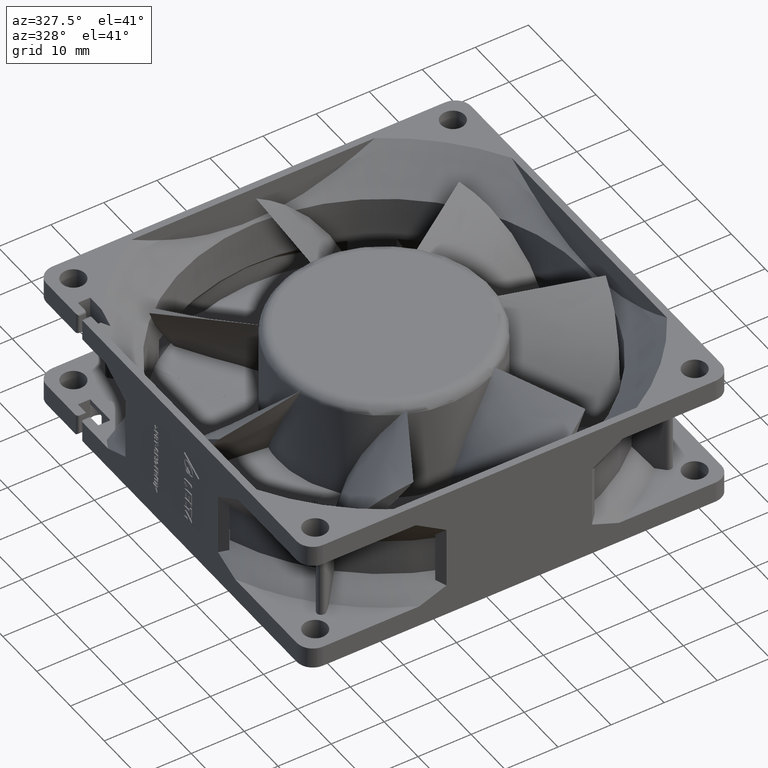
[diagram: clean part render]
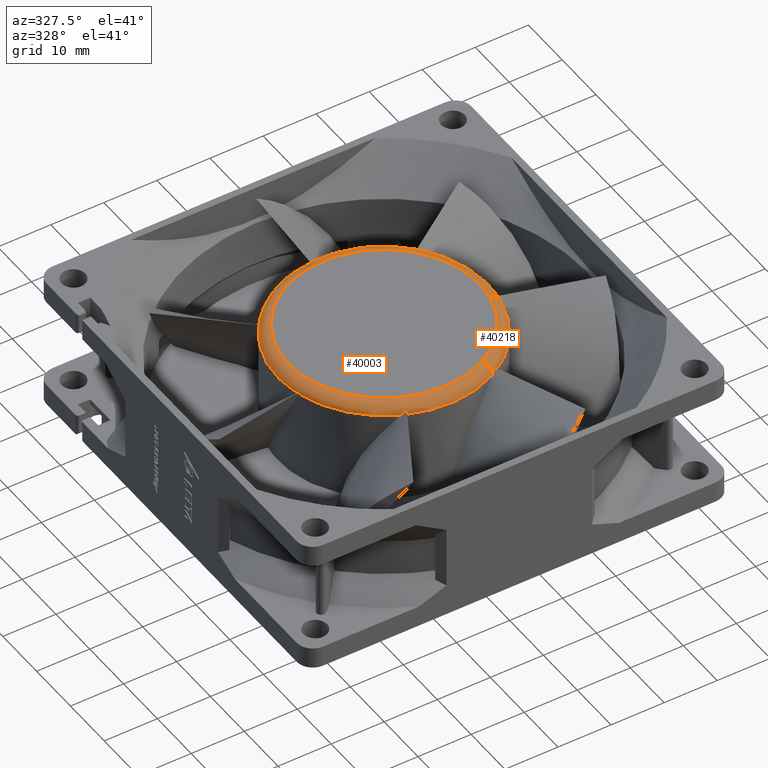
[diagram: same view with one multi-face feature highlighted, each face labeled with its STEP entity id]
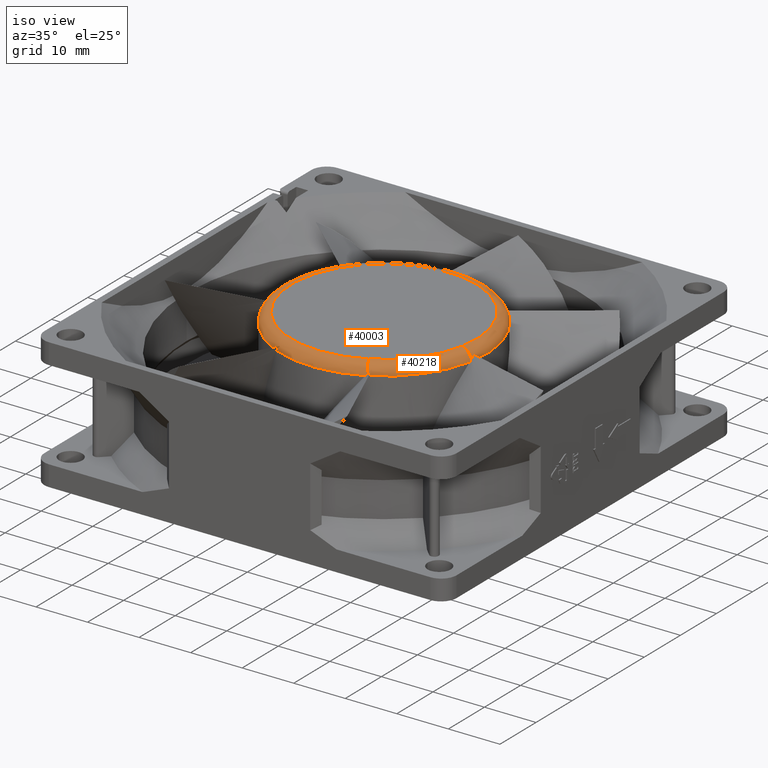
[diagram: same view with one multi-face feature highlighted, each face labeled with its STEP entity id]
A machine part, auxiliary view. The highlighted faces form ONE feature: a constant-radius fillet chain: 2 tangent blend faces with common blend radius 2 mm. The faces share edges in the B-rep.
A second angle (iso view) of the same feature is appended — it is thin or edge-on in the first view.
Their STEP definitions:
[1] entity #40218 (Torus):
#39273=CARTESIAN_POINT('',(0.E0,2.2E1,0.E0));
#39274=DIRECTION('',(0.E0,1.E0,0.E0));
#39275=DIRECTION('',(8.830438553810E-1,0.E0,-4.692904745185E-1));
#39276=AXIS2_PLACEMENT_3D('',#39273,#39274,#39275);
#39433=CARTESIAN_POINT('',(3.915445330627E0,2.225551429442E1,
-1.959627502642E1));
#39439=CARTESIAN_POINT('',(3.526790769618E0,2.2E1,-1.765111177426E1));
#39440=DIRECTION('',(-9.806173207921E-1,0.E0,-1.959328205343E-1));
#39441=DIRECTION('',(-4.051936697280E-8,1.E0,2.027939629556E-7));
#39442=AXIS2_PLACEMENT_3D('',#39439,#39440,#39441);
#39592=CARTESIAN_POINT('',(1.717412420517E1,2.3E1,-9.716135386967E0));
#39593=CARTESIAN_POINT('',(1.729278243195E1,2.284765329601E1,
-9.685025175066E0));
#39594=CARTESIAN_POINT('',(1.749600289993E1,2.252139169912E1,
-9.596437403412E0));
#39595=CARTESIAN_POINT('',(1.762073440469E1,2.217490321448E1,
-9.461370712783E0));
#39596=CARTESIAN_POINT('',(1.766132773341E1,2.2E1,-9.384961419655E0));
#39598=CARTESIAN_POINT('',(1.776217596821E1,2.225560045916E1,
-9.156930066676E0));
#39599=CARTESIAN_POINT('',(1.768330406885E1,2.239423170154E1,
-9.270937465192E0));
#39600=CARTESIAN_POINT('',(1.750168827921E1,2.265794617026E1,
-9.478650615557E0));
#39601=CARTESIAN_POINT('',(1.728691492783E1,2.289137525829E1,
-9.644131891646E0));
#39602=CARTESIAN_POINT('',(1.717412420517E1,2.3E1,-9.716135386967E0));
#39604=CARTESIAN_POINT('',(1.599907902344E1,2.2E1,-8.247997963246E0));
#39605=DIRECTION('',(-4.582221090692E-1,0.E0,-8.888377235245E-1));
#39606=DIRECTION('',(-9.211003044740E-7,9.999999999995E-1,4.748544233379E-7));
#39607=AXIS2_PLACEMENT_3D('',#39604,#39605,#39606);
#39609=CARTESIAN_POINT('',(4.163659005370E0,2.2E1,-1.956179805631E1));
#39610=CARTESIAN_POINT('',(4.122548480615E0,2.204368447729E1,
-1.957055041453E1));
#39611=CARTESIAN_POINT('',(4.040249333048E0,2.212901644006E1,
-1.958492724210E1));
#39612=CARTESIAN_POINT('',(3.957031473574E0,2.221383089592E1,
-1.959344136334E1));
#39613=CARTESIAN_POINT('',(3.915445330627E0,2.225551429442E1,
-1.959627502642E1));
#39683=CARTESIAN_POINT('',(0.E0,2.4E1,0.E0));
#39684=DIRECTION('',(0.E0,1.E0,0.E0));
#39685=DIRECTION('',(8.888401681284E-1,0.E0,-4.582173671102E-1));
#39686=AXIS2_PLACEMENT_3D('',#39683,#39684,#39685);
#39792=VERTEX_POINT('',#39598);
#39793=VERTEX_POINT('',#39602);
#39794=VERTEX_POINT('',#39433);
#39808=CARTESIAN_POINT('',(1.766087710762E1,2.2E1,-9.385809490370E0));
#39809=CARTESIAN_POINT('',(4.163174317819E0,2.2E1,-1.956190122661E1));
#39810=VERTEX_POINT('',#39808);
#39811=VERTEX_POINT('',#39809);
#39812=CARTESIAN_POINT('',(1.599912302631E1,2.4E1,-8.247912607984E0));
#39813=CARTESIAN_POINT('',(3.526790769618E0,2.4E1,-1.765111177426E1));
#39814=VERTEX_POINT('',#39812);
#39815=VERTEX_POINT('',#39813);
#40201=CARTESIAN_POINT('',(0.E0,2.2E1,0.E0));
#40202=DIRECTION('',(0.E0,1.E0,0.E0));
#40203=DIRECTION('',(-3.069072627146E-2,0.E0,9.995289287064E-1));
#40204=AXIS2_PLACEMENT_3D('',#40201,#40202,#40203);
#40205=TOROIDAL_SURFACE('',#40204,1.8E1,2.E0);
#40206=ORIENTED_EDGE('',*,*,#39887,.F.);
#40208=ORIENTED_EDGE('',*,*,#40207,.F.);
#40210=ORIENTED_EDGE('',*,*,#40209,.F.);
#40211=ORIENTED_EDGE('',*,*,#39973,.F.);
#40213=ORIENTED_EDGE('',*,*,#40212,.T.);
#40214=ORIENTED_EDGE('',*,*,#39969,.T.);
#40215=ORIENTED_EDGE('',*,*,#40190,.F.);
#40216=EDGE_LOOP('',(#40206,#40208,#40210,#40211,#40213,#40214,#40215));
#40217=FACE_OUTER_BOUND('',#40216,.F.);
#40218=ADVANCED_FACE('',(#40217),#40205,.T.);
#39277=CIRCLE('',#39276,2.E1);
#39443=CIRCLE('',#39442,2.E0);
#39597=B_SPLINE_CURVE_WITH_KNOTS('',3,(#39592,#39593,#39594,#39595,#39596),
.UNSPECIFIED.,.F.,.F.,(4,1,4),(0.E0,5.E-1,1.E0),.UNSPECIFIED.);
#39603=B_SPLINE_CURVE_WITH_KNOTS('',3,(#39598,#39599,#39600,#39601,#39602),
.UNSPECIFIED.,.F.,.F.,(4,1,4),(0.E0,5.E-1,1.E0),.UNSPECIFIED.);
#39608=CIRCLE('',#39607,2.E0);
#39614=B_SPLINE_CURVE_WITH_KNOTS('',3,(#39609,#39610,#39611,#39612,#39613),
.UNSPECIFIED.,.F.,.F.,(4,1,4),(0.E0,5.E-1,1.E0),.UNSPECIFIED.);
#39687=CIRCLE('',#39686,1.8E1);
#39887=EDGE_CURVE('',#39810,#39811,#39277,.T.);
#39969=EDGE_CURVE('',#39815,#39794,#39443,.T.);
#39973=EDGE_CURVE('',#39814,#39792,#39608,.T.);
#40190=EDGE_CURVE('',#39811,#39794,#39614,.T.);
#40207=EDGE_CURVE('',#39793,#39810,#39597,.T.);
#40209=EDGE_CURVE('',#39792,#39793,#39603,.T.);
#40212=EDGE_CURVE('',#39814,#39815,#39687,.T.);
[2] entity #40003 (Torus):
#39245=CARTESIAN_POINT('',(0.E0,2.2E1,0.E0));
#39246=DIRECTION('',(0.E0,1.E0,0.E0));
#39247=DIRECTION('',(-6.540201259529E-1,0.E0,-7.564771476049E-1));
#39248=AXIS2_PLACEMENT_3D('',#39245,#39246,#39247);
#39302=CARTESIAN_POINT('',(0.E0,2.2E1,0.E0));
#39303=DIRECTION('',(0.E0,1.E0,0.E0));
#39304=DIRECTION('',(1.836627710231E-1,0.E0,-9.829893115086E-1));
#39305=AXIS2_PLACEMENT_3D('',#39302,#39303,#39304);
#39333=CARTESIAN_POINT('',(0.E0,2.2E1,0.E0));
#39334=DIRECTION('',(0.E0,1.E0,0.E0));
#39335=DIRECTION('',(-5.919775168745E-1,0.E0,8.059544773218E-1));
#39336=AXIS2_PLACEMENT_3D('',#39333,#39334,#39335);
#39373=CARTESIAN_POINT('',(5.220490401086E0,2.2E1,1.930664341509E1));
#39375=CARTESIAN_POINT('',(0.E0,2.2E1,0.E0));
#39376=DIRECTION('',(0.E0,1.E0,0.E0));
#39377=DIRECTION('',(2.610286391054E-1,0.E0,9.653310569783E-1));
#39378=AXIS2_PLACEMENT_3D('',#39375,#39376,#39377);
#39380=CARTESIAN_POINT('',(1.814473532809E1,2.2E1,8.412406240415E0));
#39391=CARTESIAN_POINT('',(0.E0,2.2E1,0.E0));
#39392=DIRECTION('',(0.E0,1.E0,0.E0));
#39393=DIRECTION('',(-9.992125285072E-1,0.E0,3.967773776684E-2));
#39394=AXIS2_PLACEMENT_3D('',#39391,#39392,#39393);
#39420=CARTESIAN_POINT('',(-1.329413374531E1,2.3E1,-1.458148953414E1));
#39421=CARTESIAN_POINT('',(-1.325259224749E1,2.289994584405E1,
-1.469753430924E1));
#39422=CARTESIAN_POINT('',(-1.315187538040E1,2.269093213135E1,
-1.491956203031E1));
#39423=CARTESIAN_POINT('',(-1.294682764577E1,2.234773046315E1,
-1.521904570189E1));
#39424=CARTESIAN_POINT('',(-1.278488253085E1,2.211709822372E1,
-1.538050103505E1));
#39425=CARTESIAN_POINT('',(-1.269782976001E1,2.2E1,-1.545202634751E1));
#39427=CARTESIAN_POINT('',(3.111510764326E0,2.3E1,-1.948518231467E1));
#39428=CARTESIAN_POINT('',(3.209821655600E0,2.284764437904E1,
-1.955856044680E1));
#39429=CARTESIAN_POINT('',(3.405851190154E0,2.252196948282E1,
-1.966208250800E1));
#39430=CARTESIAN_POINT('',(3.588548712267E0,2.217457249214E1,
-1.967561538792E1));
#39431=CARTESIAN_POINT('',(3.673439568990E0,2.2E1,-1.965975182099E1));
#39433=CARTESIAN_POINT('',(3.915445330627E0,2.225551429442E1,
-1.959627502642E1));
#39434=CARTESIAN_POINT('',(3.777721781829E0,2.239355993079E1,
-1.960565945373E1));
#39435=CARTESIAN_POINT('',(3.502711310471E0,2.265675677380E1,
-1.959340267967E1));
#39436=CARTESIAN_POINT('',(3.238764648299E0,2.289083013841E1,
-1.952868945254E1));
#39437=CARTESIAN_POINT('',(3.111510764326E0,2.3E1,-1.948518231467E1));
#39439=CARTESIAN_POINT('',(3.526790769618E0,2.2E1,-1.765111177426E1));
#39440=DIRECTION('',(-9.806173207921E-1,0.E0,-1.959328205343E-1));
#39441=DIRECTION('',(-4.051936697280E-8,1.E0,2.027939629556E-7));
#39442=AXIS2_PLACEMENT_3D('',#39439,#39440,#39441);
#39444=CARTESIAN_POINT('',(0.E0,2.4E1,0.E0));
#39445=DIRECTION('',(0.E0,1.E0,0.E0));
#39446=DIRECTION('',(1.959328205343E-1,0.E0,-9.806173207921E-1));
#39447=AXIS2_PLACEMENT_3D('',#39444,#39445,#39446);
#39449=CARTESIAN_POINT('',(1.788937690033E1,2.2E1,-8.942605451867E0));
#39450=CARTESIAN_POINT('',(1.787120805577E1,2.204222288584E1,
-8.978942866242E0));
#39451=CARTESIAN_POINT('',(1.783152384906E1,2.212901591913E1,
-9.051564491096E0));
#39452=CARTESIAN_POINT('',(1.778632120481E1,2.221316095693E1,
-9.122028718609E0));
#39453=CARTESIAN_POINT('',(1.776217596821E1,2.225560045916E1,
-9.156930066676E0));
#39455=CARTESIAN_POINT('',(1.830427183123E1,2.3E1,7.369359660166E0));
#39456=CARTESIAN_POINT('',(1.835393203319E1,2.284765037929E1,7.481529444855E0));
#39457=CARTESIAN_POINT('',(1.841121501413E1,2.252208821245E1,7.695681304349E0));
#39458=CARTESIAN_POINT('',(1.838382243584E1,2.217452351020E1,7.876708973360E0));
#39459=CARTESIAN_POINT('',(1.834947778753E1,2.2E1,7.955920117730E0));
#39461=CARTESIAN_POINT('',(1.830427183123E1,2.3E1,7.369359660166E0));
#39462=CARTESIAN_POINT('',(1.831719386320E1,2.289994826514E1,7.491933604122E0));
#39463=CARTESIAN_POINT('',(1.832278559888E1,2.269093739008E1,7.735668813735E0));
#39464=CARTESIAN_POINT('',(1.826798846643E1,2.234774816207E1,8.094454276434E0));
#39465=CARTESIAN_POINT('',(1.819213387173E1,2.211709941735E1,8.310192273550E0));
#39466=CARTESIAN_POINT('',(1.814473532809E1,2.2E1,8.412406240415E0));
#39468=CARTESIAN_POINT('',(5.650929429275E0,2.3E1,1.890557657565E1));
#39469=CARTESIAN_POINT('',(5.594193631759E0,2.284764888106E1,1.901434027139E1));
#39470=CARTESIAN_POINT('',(5.462482183768E0,2.252205840045E1,1.919265169191E1));
#39471=CARTESIAN_POINT('',(5.303839648639E0,2.217453581477E1,1.928410665401E1));
#39472=CARTESIAN_POINT('',(5.220490401086E0,2.2E1,1.930664341509E1));
#39474=CARTESIAN_POINT('',(5.650929429275E0,2.3E1,1.890557657565E1));
#39475=CARTESIAN_POINT('',(5.563255053988E0,2.290006343423E1,1.899200343089E1));
#39476=CARTESIAN_POINT('',(5.376348673337E0,2.269118362504E1,1.914821560587E1));
#39477=CARTESIAN_POINT('',(5.062193128089E0,2.234878436515E1,1.932892484558E1));
#39478=CARTESIAN_POINT('',(4.845913738999E0,2.211720994243E1,1.940438103566E1));
#39479=CARTESIAN_POINT('',(4.736344676160E0,2.2E1,1.943108434546E1));
#39481=CARTESIAN_POINT('',(-1.125767809088E1,2.3E1,1.620550872619E1));
#39482=CARTESIAN_POINT('',(-1.137809688297E1,2.284763658322E1,
1.622896584193E1));
#39483=CARTESIAN_POINT('',(-1.159963480804E1,2.252181735556E1,
1.623721081383E1));
#39484=CARTESIAN_POINT('',(-1.177021714656E1,2.217463521687E1,
1.617002091560E1));
#39485=CARTESIAN_POINT('',(-1.183984168726E1,2.2E1,1.611887553644E1));
#39487=CARTESIAN_POINT('',(-1.125767809088E1,2.3E1,1.620550872619E1));
#39488=CARTESIAN_POINT('',(-1.138014144113E1,2.289987699845E1,
1.619082105280E1));
#39489=CARTESIAN_POINT('',(-1.161913853793E1,2.269078822069E1,
1.614200588103E1));
#39490=CARTESIAN_POINT('',(-1.195705666280E1,2.234703551010E1,
1.600852425217E1));
#39491=CARTESIAN_POINT('',(-1.215023796691E1,2.211702738925E1,
1.588662491146E1));
#39492=CARTESIAN_POINT('',(-1.223928410377E1,2.2E1,1.581770914407E1));
#39494=CARTESIAN_POINT('',(-1.968902439382E1,2.3E1,1.302362273774E0));
#39495=CARTESIAN_POINT('',(-1.978243354592E1,2.284765329778E1,
1.222849067184E0));
#39496=CARTESIAN_POINT('',(-1.992709207322E1,2.252139167080E1,
1.054860191981E0));
#39497=CARTESIAN_POINT('',(-1.998086803205E1,2.217490323395E1,
8.790502983053E-1));
#39498=CARTESIAN_POINT('',(-1.998428860751E1,2.2E1,7.925951091435E-1));
#39500=CARTESIAN_POINT('',(-1.968902439382E1,2.3E1,1.302362273774E0));
#39501=CARTESIAN_POINT('',(-1.975373965235E1,2.290011793373E1,
1.197711395122E0));
#39502=CARTESIAN_POINT('',(-1.986440003778E1,2.269128112808E1,
9.808283413859E-1));
#39503=CARTESIAN_POINT('',(-1.997064900979E1,2.234940884625E1,
6.346294238663E-1));
#39504=CARTESIAN_POINT('',(-1.999617910449E1,2.211715073289E1,
4.068483536093E-1));
#39505=CARTESIAN_POINT('',(-1.999783691332E1,2.2E1,2.941407628E-1));
#39507=CARTESIAN_POINT('',(-1.329413374531E1,2.3E1,-1.458148953414E1));
#39508=CARTESIAN_POINT('',(-1.329020713950E1,2.284764044030E1,
-1.470410577090E1));
#39509=CARTESIAN_POINT('',(-1.324893525843E1,2.252189235037E1,
-1.492191844401E1));
#39510=CARTESIAN_POINT('',(-1.314553773174E1,2.217460429748E1,
-1.507323434603E1));
#39511=CARTESIAN_POINT('',(-1.308019395918E1,2.2E1,-1.512972325716E1));
#39598=CARTESIAN_POINT('',(1.776217596821E1,2.225560045916E1,
-9.156930066676E0));
#39604=CARTESIAN_POINT('',(1.599907902344E1,2.2E1,-8.247997963246E0));
#39605=DIRECTION('',(-4.582221090692E-1,0.E0,-8.888377235245E-1));
#39606=DIRECTION('',(-9.211003044740E-7,9.999999999995E-1,4.748544233379E-7));
#39607=AXIS2_PLACEMENT_3D('',#39604,#39605,#39606);
#39643=CARTESIAN_POINT('',(1.834947778753E1,2.2E1,7.955920117730E0));
#39645=CARTESIAN_POINT('',(0.E0,2.2E1,0.E0));
#39646=DIRECTION('',(0.E0,1.E0,0.E0));
#39647=DIRECTION('',(9.174749058250E-1,0.E0,3.977936615651E-1));
#39648=AXIS2_PLACEMENT_3D('',#39645,#39646,#39647);
#39792=VERTEX_POINT('',#39598);
#39794=VERTEX_POINT('',#39433);
#39795=VERTEX_POINT('',#39437);
#39796=CARTESIAN_POINT('',(-1.183955033749E1,2.2E1,1.611908954644E1));
#39797=CARTESIAN_POINT('',(4.736700396442E0,2.2E1,1.943099764177E1));
#39798=VERTEX_POINT('',#39796);
#39799=VERTEX_POINT('',#39797);
#39800=CARTESIAN_POINT('',(-1.998425057014E1,2.2E1,7.935547553368E-1));
#39801=CARTESIAN_POINT('',(-1.223848130045E1,2.2E1,1.581833036254E1));
#39802=VERTEX_POINT('',#39800);
#39803=VERTEX_POINT('',#39801);
#39804=CARTESIAN_POINT('',(3.673255420463E0,2.2E1,-1.965978623017E1));
#39805=CARTESIAN_POINT('',(-1.269841350537E1,2.2E1,-1.545154666843E1));
#39806=VERTEX_POINT('',#39804);
#39807=VERTEX_POINT('',#39805);
#39812=CARTESIAN_POINT('',(1.599912302631E1,2.4E1,-8.247912607984E0));
#39813=CARTESIAN_POINT('',(3.526790769618E0,2.4E1,-1.765111177426E1));
#39814=VERTEX_POINT('',#39812);
#39815=VERTEX_POINT('',#39813);
#39816=VERTEX_POINT('',#39373);
#39817=VERTEX_POINT('',#39380);
#39818=VERTEX_POINT('',#39643);
#39819=VERTEX_POINT('',#39449);
#39820=VERTEX_POINT('',#39455);
#39821=VERTEX_POINT('',#39507);
#39822=VERTEX_POINT('',#39511);
#39823=VERTEX_POINT('',#39494);
#39828=CARTESIAN_POINT('',(5.650929429275E0,2.3E1,1.890557657565E1));
#39829=VERTEX_POINT('',#39828);
#39838=VERTEX_POINT('',#39481);
#39843=CARTESIAN_POINT('',(-1.999783695859E1,2.2E1,2.941376851852E-1));
#39844=VERTEX_POINT('',#39843);
#39957=CARTESIAN_POINT('',(0.E0,2.2E1,0.E0));
#39958=DIRECTION('',(0.E0,1.E0,0.E0));
#39959=DIRECTION('',(9.969752950012E-1,0.E0,7.771911706492E-2));
#39960=AXIS2_PLACEMENT_3D('',#39957,#39958,#39959);
#39961=TOROIDAL_SURFACE('',#39960,1.8E1,2.E0);
#39963=ORIENTED_EDGE('',*,*,#39962,.T.);
#39964=ORIENTED_EDGE('',*,*,#39902,.F.);
#39966=ORIENTED_EDGE('',*,*,#39965,.F.);
#39968=ORIENTED_EDGE('',*,*,#39967,.F.);
#39970=ORIENTED_EDGE('',*,*,#39969,.F.);
#39972=ORIENTED_EDGE('',*,*,#39971,.T.);
#39974=ORIENTED_EDGE('',*,*,#39973,.T.);
#39976=ORIENTED_EDGE('',*,*,#39975,.F.);
#39978=ORIENTED_EDGE('',*,*,#39977,.F.);
#39980=ORIENTED_EDGE('',*,*,#39979,.F.);
#39982=ORIENTED_EDGE('',*,*,#39981,.T.);
#39983=ORIENTED_EDGE('',*,*,#39934,.F.);
#39985=ORIENTED_EDGE('',*,*,#39984,.F.);
#39987=ORIENTED_EDGE('',*,*,#39986,.T.);
#39988=ORIENTED_EDGE('',*,*,#39917,.F.);
#39990=ORIENTED_EDGE('',*,*,#39989,.F.);
#39992=ORIENTED_EDGE('',*,*,#39991,.T.);
#39993=ORIENTED_EDGE('',*,*,#39947,.F.);
#39995=ORIENTED_EDGE('',*,*,#39994,.F.);
#39997=ORIENTED_EDGE('',*,*,#39996,.T.);
#39998=ORIENTED_EDGE('',*,*,#39872,.F.);
#40000=ORIENTED_EDGE('',*,*,#39999,.F.);
#40001=EDGE_LOOP('',(#39963,#39964,#39966,#39968,#39970,#39972,#39974,#39976,
#39978,#39980,#39982,#39983,#39985,#39987,#39988,#39990,#39992,#39993,#39995,
#39997,#39998,#40000));
#40002=FACE_OUTER_BOUND('',#40001,.F.);
#40003=ADVANCED_FACE('',(#40002),#39961,.T.);
#39249=CIRCLE('',#39248,2.E1);
#39306=CIRCLE('',#39305,2.E1);
#39337=CIRCLE('',#39336,2.E1);
#39379=CIRCLE('',#39378,2.E1);
#39395=CIRCLE('',#39394,2.E1);
#39426=B_SPLINE_CURVE_WITH_KNOTS('',3,(#39420,#39421,#39422,#39423,#39424,
#39425),.UNSPECIFIED.,.F.,.F.,(4,1,1,4),(0.E0,3.333333333333E-1,
6.666666666667E-1,1.E0),.UNSPECIFIED.);
#39432=B_SPLINE_CURVE_WITH_KNOTS('',3,(#39427,#39428,#39429,#39430,#39431),
.UNSPECIFIED.,.F.,.F.,(4,1,4),(0.E0,5.E-1,1.E0),.UNSPECIFIED.);
#39438=B_SPLINE_CURVE_WITH_KNOTS('',3,(#39433,#39434,#39435,#39436,#39437),
.UNSPECIFIED.,.F.,.F.,(4,1,4),(0.E0,5.E-1,1.E0),.UNSPECIFIED.);
#39443=CIRCLE('',#39442,2.E0);
#39448=CIRCLE('',#39447,1.8E1);
#39454=B_SPLINE_CURVE_WITH_KNOTS('',3,(#39449,#39450,#39451,#39452,#39453),
.UNSPECIFIED.,.F.,.F.,(4,1,4),(0.E0,5.E-1,1.E0),.UNSPECIFIED.);
#39460=B_SPLINE_CURVE_WITH_KNOTS('',3,(#39455,#39456,#39457,#39458,#39459),
.UNSPECIFIED.,.F.,.F.,(4,1,4),(0.E0,5.E-1,1.E0),.UNSPECIFIED.);
#39467=B_SPLINE_CURVE_WITH_KNOTS('',3,(#39461,#39462,#39463,#39464,#39465,
#39466),.UNSPECIFIED.,.F.,.F.,(4,1,1,4),(0.E0,3.333333333333E-1,
6.666666666667E-1,1.E0),.UNSPECIFIED.);
#39473=B_SPLINE_CURVE_WITH_KNOTS('',3,(#39468,#39469,#39470,#39471,#39472),
.UNSPECIFIED.,.F.,.F.,(4,1,4),(0.E0,5.E-1,1.E0),.UNSPECIFIED.);
#39480=B_SPLINE_CURVE_WITH_KNOTS('',3,(#39474,#39475,#39476,#39477,#39478,
#39479),.UNSPECIFIED.,.F.,.F.,(4,1,1,4),(0.E0,3.333333333333E-1,
6.666666666667E-1,1.E0),.UNSPECIFIED.);
#39486=B_SPLINE_CURVE_WITH_KNOTS('',3,(#39481,#39482,#39483,#39484,#39485),
.UNSPECIFIED.,.F.,.F.,(4,1,4),(0.E0,5.E-1,1.E0),.UNSPECIFIED.);
#39493=B_SPLINE_CURVE_WITH_KNOTS('',3,(#39487,#39488,#39489,#39490,#39491,
#39492),.UNSPECIFIED.,.F.,.F.,(4,1,1,4),(0.E0,3.333333333333E-1,
6.666666666667E-1,1.E0),.UNSPECIFIED.);
#39499=B_SPLINE_CURVE_WITH_KNOTS('',3,(#39494,#39495,#39496,#39497,#39498),
.UNSPECIFIED.,.F.,.F.,(4,1,4),(0.E0,5.E-1,1.E0),.UNSPECIFIED.);
#39506=B_SPLINE_CURVE_WITH_KNOTS('',3,(#39500,#39501,#39502,#39503,#39504,
#39505),.UNSPECIFIED.,.F.,.F.,(4,1,1,4),(0.E0,3.333333333333E-1,
6.666666666667E-1,1.E0),.UNSPECIFIED.);
#39512=B_SPLINE_CURVE_WITH_KNOTS('',3,(#39507,#39508,#39509,#39510,#39511),
.UNSPECIFIED.,.F.,.F.,(4,1,4),(0.E0,5.E-1,1.E0),.UNSPECIFIED.);
#39608=CIRCLE('',#39607,2.E0);
#39649=CIRCLE('',#39648,2.E1);
#39872=EDGE_CURVE('',#39822,#39844,#39249,.T.);
#39902=EDGE_CURVE('',#39806,#39807,#39306,.T.);
#39917=EDGE_CURVE('',#39798,#39799,#39337,.T.);
#39934=EDGE_CURVE('',#39816,#39817,#39379,.T.);
#39947=EDGE_CURVE('',#39802,#39803,#39395,.T.);
#39962=EDGE_CURVE('',#39821,#39807,#39426,.T.);
#39965=EDGE_CURVE('',#39795,#39806,#39432,.T.);
#39967=EDGE_CURVE('',#39794,#39795,#39438,.T.);
#39969=EDGE_CURVE('',#39815,#39794,#39443,.T.);
#39971=EDGE_CURVE('',#39815,#39814,#39448,.T.);
#39973=EDGE_CURVE('',#39814,#39792,#39608,.T.);
#39975=EDGE_CURVE('',#39819,#39792,#39454,.T.);
#39977=EDGE_CURVE('',#39818,#39819,#39649,.T.);
#39979=EDGE_CURVE('',#39820,#39818,#39460,.T.);
#39981=EDGE_CURVE('',#39820,#39817,#39467,.T.);
#39984=EDGE_CURVE('',#39829,#39816,#39473,.T.);
#39986=EDGE_CURVE('',#39829,#39799,#39480,.T.);
#39989=EDGE_CURVE('',#39838,#39798,#39486,.T.);
#39991=EDGE_CURVE('',#39838,#39803,#39493,.T.);
#39994=EDGE_CURVE('',#39823,#39802,#39499,.T.);
#39996=EDGE_CURVE('',#39823,#39844,#39506,.T.);
#39999=EDGE_CURVE('',#39821,#39822,#39512,.T.);